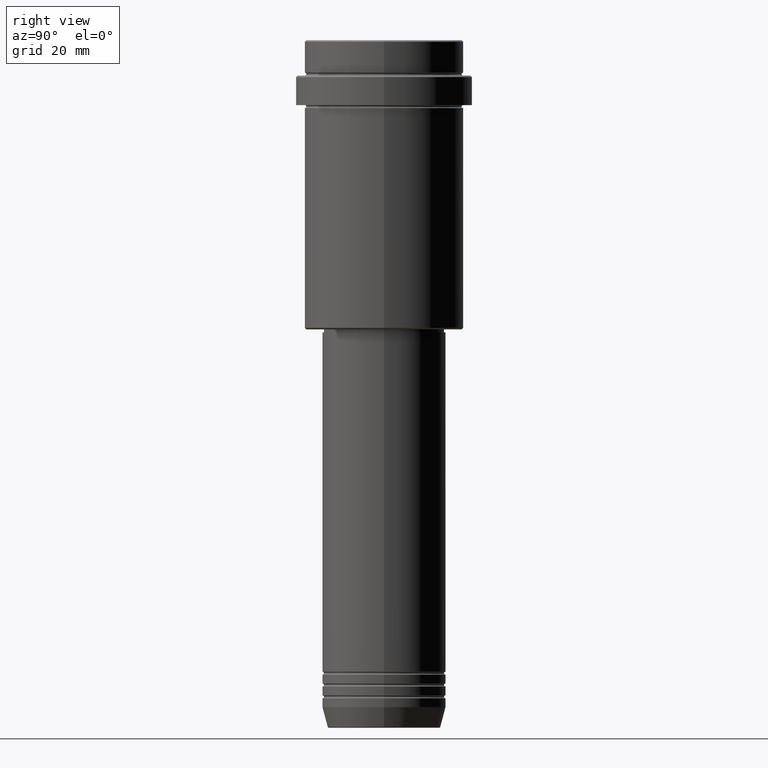
[diagram: clean part render]
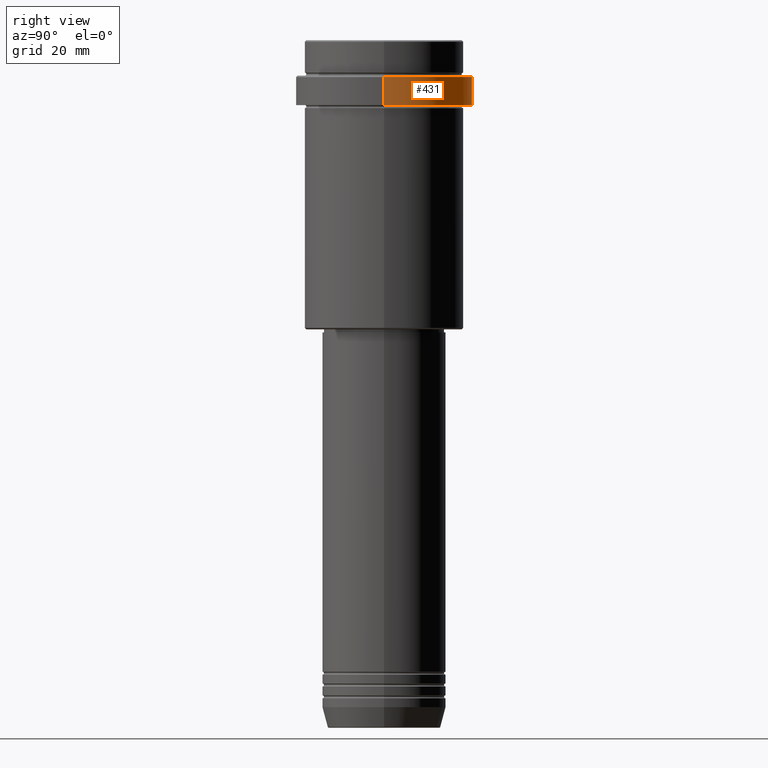
[diagram: same view with one face highlighted and labeled with its STEP entity id]
A machine part, right view. The second image highlights one B-rep face of the part: STEP entity #431.
In plain terms, the highlighted cylindrical surface (partial cylindrical patch) has radius 30 mm, axis along (-0, -0, 1).
Its self-contained STEP definition (entity closure, byte-faithful):
#4 = ORIENTED_EDGE ( 'NONE', *, *, #609, .T. ) ;
#55 = AXIS2_PLACEMENT_3D ( 'NONE', #740, #1175, #1180 ) ;
#96 = CARTESIAN_POINT ( 'NONE',  ( 29.99999999999999645, 0.000000000000000000, -22.00000000000000355 ) ) ;
#206 = ORIENTED_EDGE ( 'NONE', *, *, #1092, .T. ) ;
#293 = CARTESIAN_POINT ( 'NONE',  ( 30.00000000000000000, 0.000000000000000000, -12.49999999999998224 ) ) ;
#365 = AXIS2_PLACEMENT_3D ( 'NONE', #635, #406, #1076 ) ;
#406 = DIRECTION ( 'NONE',  ( 0.000000000000000000, 0.000000000000000000, -1.000000000000000000 ) ) ;
#431 = ADVANCED_FACE ( 'NONE', ( #764 ), #1191, .T. ) ;
#443 = EDGE_LOOP ( 'NONE', ( #206, #4, #915, #511 ) ) ;
#511 = ORIENTED_EDGE ( 'NONE', *, *, #584, .F. ) ;
#551 = CARTESIAN_POINT ( 'NONE',  ( 30.00000000000000000, 0.000000000000000000, 0.000000000000000000 ) ) ;
#567 = VERTEX_POINT ( 'NONE', #293 ) ;
#577 = VERTEX_POINT ( 'NONE', #96 ) ;
#584 = EDGE_CURVE ( 'NONE', #577, #567, #850, .T. ) ;
#609 = EDGE_CURVE ( 'NONE', #889, #1199, #1417, .T. ) ;
#635 = CARTESIAN_POINT ( 'NONE',  ( 0.000000000000000000, 0.000000000000000000, -12.49999999999998224 ) ) ;
#701 = DIRECTION ( 'NONE',  ( 1.000000000000000000, 0.000000000000000000, 0.000000000000000000 ) ) ;
#738 = VECTOR ( 'NONE', #979, 1000.000000000000000 ) ;
#740 = CARTESIAN_POINT ( 'NONE',  ( 0.000000000000000000, 0.000000000000000000, -22.00000000000000355 ) ) ;
#764 = FACE_OUTER_BOUND ( 'NONE', #443, .T. ) ;
#836 = DIRECTION ( 'NONE',  ( -0.000000000000000000, -0.000000000000000000, 1.000000000000000000 ) ) ;
#840 = DIRECTION ( 'NONE',  ( -0.000000000000000000, -0.000000000000000000, 1.000000000000000000 ) ) ;
#850 = LINE ( 'NONE', #551, #1183 ) ;
#868 = CARTESIAN_POINT ( 'NONE',  ( -30.00000000000000000, 3.673940397442059178E-15, 0.000000000000000000 ) ) ;
#889 = VERTEX_POINT ( 'NONE', #1143 ) ;
#895 = CARTESIAN_POINT ( 'NONE',  ( 0.000000000000000000, 0.000000000000000000, 0.000000000000000000 ) ) ;
#899 = CARTESIAN_POINT ( 'NONE',  ( -30.00000000000000000, 3.673940397442059178E-15, -12.49999999999998224 ) ) ;
#915 = ORIENTED_EDGE ( 'NONE', *, *, #1051, .T. ) ;
#978 = AXIS2_PLACEMENT_3D ( 'NONE', #895, #836, #701 ) ;
#979 = DIRECTION ( 'NONE',  ( -0.000000000000000000, -0.000000000000000000, 1.000000000000000000 ) ) ;
#1051 = EDGE_CURVE ( 'NONE', #1199, #567, #1233, .T. ) ;
#1076 = DIRECTION ( 'NONE',  ( 1.000000000000000000, 0.000000000000000000, 0.000000000000000000 ) ) ;
#1092 = EDGE_CURVE ( 'NONE', #577, #889, #1105, .T. ) ;
#1105 = CIRCLE ( 'NONE', #55, 29.99999999999999645 ) ;
#1143 = CARTESIAN_POINT ( 'NONE',  ( -29.99999999999999645, 3.673940397442058389E-15, -22.00000000000000355 ) ) ;
#1175 = DIRECTION ( 'NONE',  ( -0.000000000000000000, -0.000000000000000000, 1.000000000000000000 ) ) ;
#1180 = DIRECTION ( 'NONE',  ( 1.000000000000000000, 0.000000000000000000, 0.000000000000000000 ) ) ;
#1183 = VECTOR ( 'NONE', #840, 1000.000000000000000 ) ;
#1191 = CYLINDRICAL_SURFACE ( 'NONE', #978, 30.00000000000000000 ) ;
#1199 = VERTEX_POINT ( 'NONE', #899 ) ;
#1233 = CIRCLE ( 'NONE', #365, 30.00000000000000000 ) ;
#1417 = LINE ( 'NONE', #868, #738 ) ;